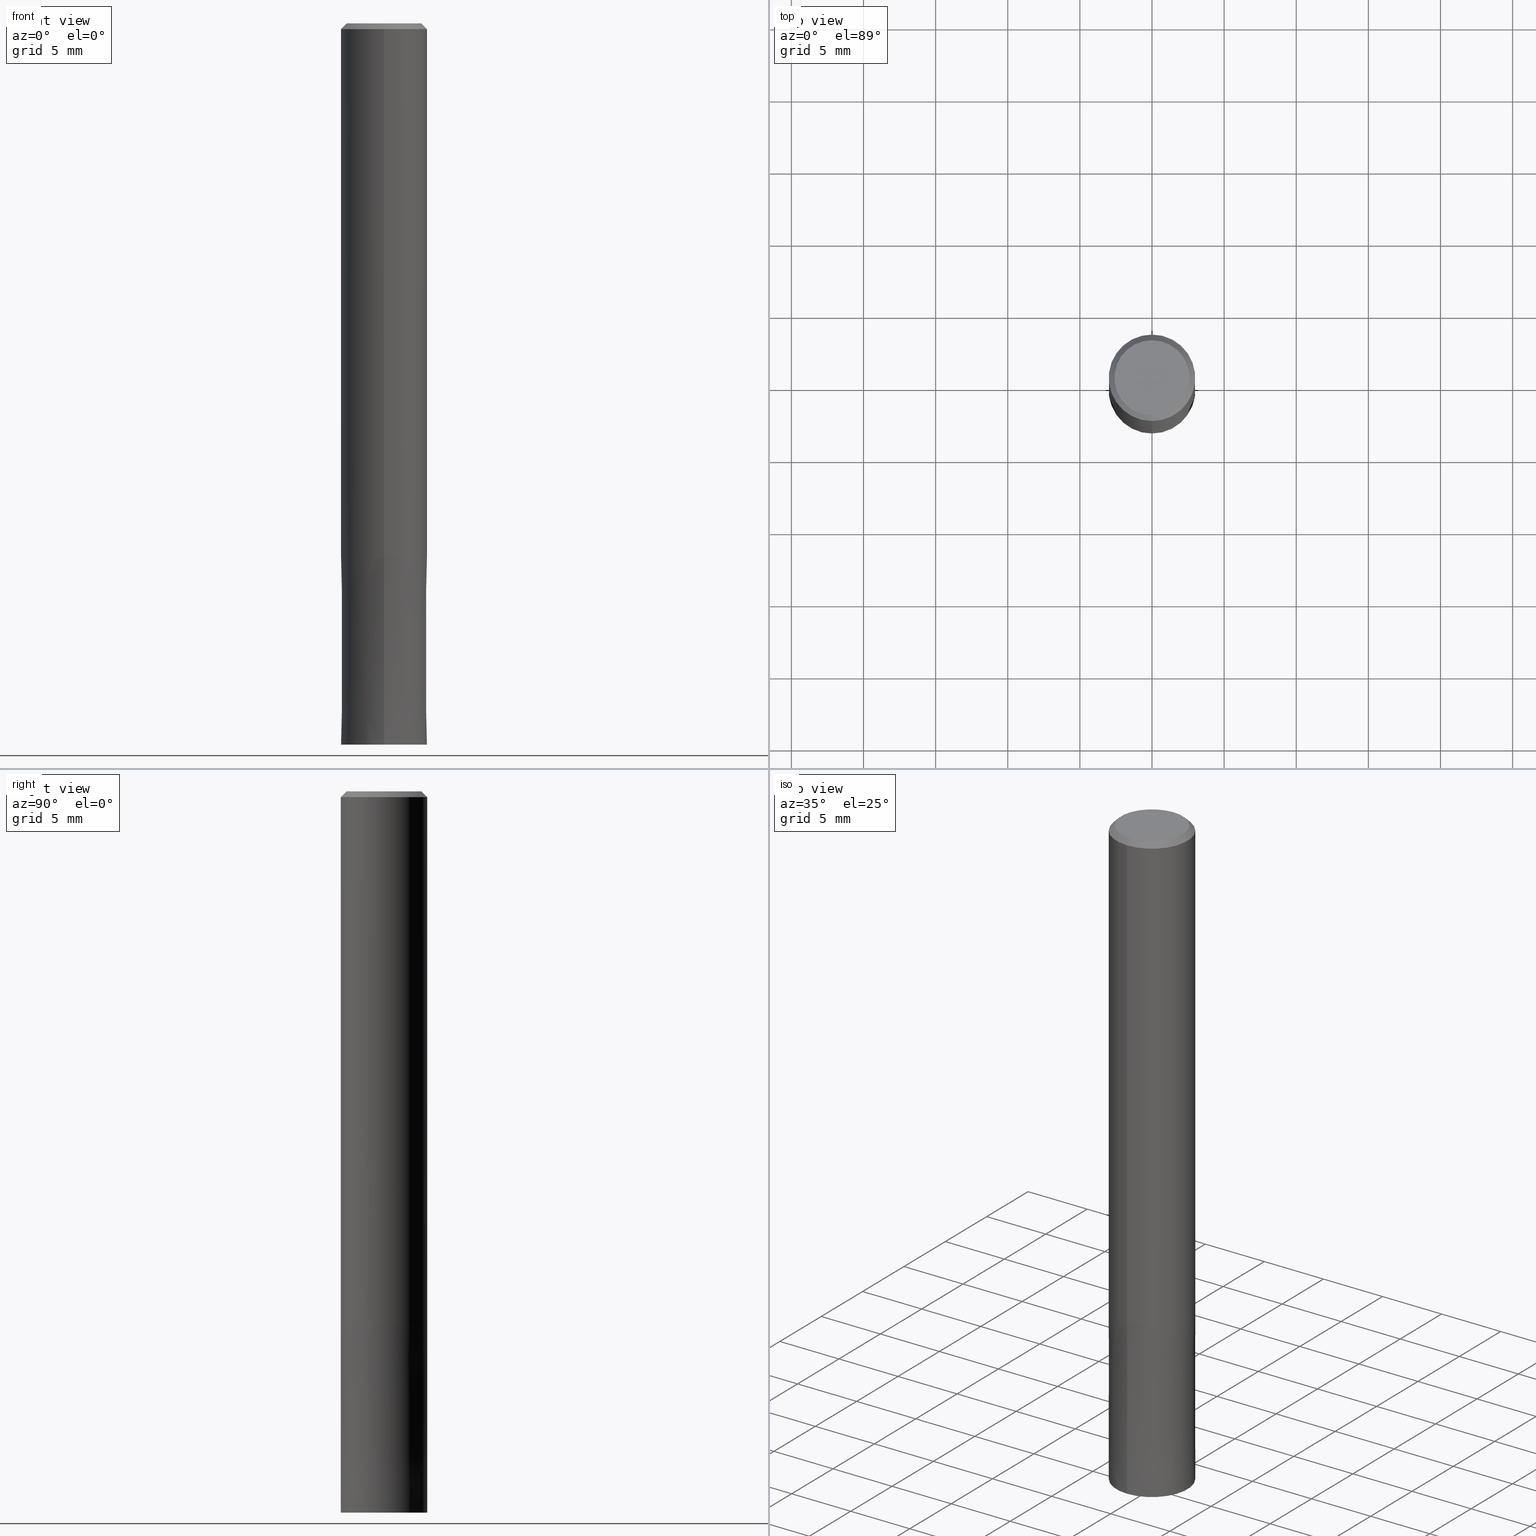
[diagram: canonical four-view strip — front | top / right | iso, engineering-drawing reading convention]
A machine part, canonical four-view strip (front | top / right | iso — engineering-drawing reading convention). The complete STEP part file that produces these views, byte-faithful:
ISO-10303-21;
HEADER;
FILE_DESCRIPTION(('no description'),'unknown implementation level');
FILE_NAME('HMS6060-1300-Huellk.stp','  ',('CIMSOURCE GmbH'),('CADClick - KiM GmbH - www.kimweb.de'),'unknown preprocess','ACIS','unknown authorization');
FILE_SCHEMA(('automotive_design'));
ENDSEC;
DATA;
#1=MECHANICAL_DESIGN_GEOMETRIC_PRESENTATION_REPRESENTATION(' ',(#14,#15,#16,#17,#18,#19,#20,#21,#22,#23,#24,#25,#26,#27,#28,#29,#30,#31,#32,#33,#34,#35,#36,#37,#38,#39,#40,#41,#42,#43,#44,#45,#46,#47,#48,#49,#50,#51,#52,#53,#54,#55,#56,#57,#58,#59,#60,#61,#62,#63,#64,#65,#66,#67,#68,#69,#70,#71,#72,#73,#74,#75,#76),#10);
#2=PRODUCT_DEFINITION_CONTEXT('',#77,'design');
#3=APPLICATION_PROTOCOL_DEFINITION('INTERNATIONAL STANDARD','automotive_design',1994,#77);
#4=PRODUCT_CATEGORY_RELATIONSHIP('NONE','NONE',#78,#79);
#5=SHAPE_DEFINITION_REPRESENTATION(#80,#81);
#6=PRODUCT_DEFINITION_CONTEXT('',#82,'design');
#7=APPLICATION_PROTOCOL_DEFINITION('INTERNATIONAL STANDARD','automotive_design',1994,#82);
#8=PRODUCT_CATEGORY_RELATIONSHIP('NONE','NONE',#83,#84);
#9=SHAPE_DEFINITION_REPRESENTATION(#85,#86);
#10= (GEOMETRIC_REPRESENTATION_CONTEXT(3)GLOBAL_UNCERTAINTY_ASSIGNED_CONTEXT((#89))GLOBAL_UNIT_ASSIGNED_CONTEXT((#91,#92,#93))REPRESENTATION_CONTEXT('NONE','WORKSPACE'));
#14=STYLED_ITEM('',(#95),#96);
#15=STYLED_ITEM('',(#97),#98);
#16=STYLED_ITEM('',(#99),#100);
#17=STYLED_ITEM('',(#101),#102);
#18=STYLED_ITEM('',(#103),#104);
#19=STYLED_ITEM('',(#105),#106);
#20=STYLED_ITEM('',(#107),#108);
#21=STYLED_ITEM('',(#109),#110);
#22=STYLED_ITEM('',(#111),#112);
#23=STYLED_ITEM('',(#113),#114);
#24=STYLED_ITEM('',(#115),#116);
#25=STYLED_ITEM('',(#117),#118);
#26=STYLED_ITEM('',(#119),#120);
#27=STYLED_ITEM('',(#121),#122);
#28=STYLED_ITEM('',(#123),#124);
#29=STYLED_ITEM('',(#125),#126);
#30=STYLED_ITEM('',(#127),#128);
#31=STYLED_ITEM('',(#129),#130);
#32=STYLED_ITEM('',(#131),#132);
#33=STYLED_ITEM('',(#133),#134);
#34=STYLED_ITEM('',(#135),#136);
#35=STYLED_ITEM('',(#137),#138);
#36=STYLED_ITEM('',(#139),#140);
#37=STYLED_ITEM('',(#141),#142);
#38=STYLED_ITEM('',(#143),#144);
#39=STYLED_ITEM('',(#145),#146);
#40=STYLED_ITEM('',(#147),#148);
#41=STYLED_ITEM('',(#149),#150);
#42=STYLED_ITEM('',(#151),#152);
#43=STYLED_ITEM('',(#153),#154);
#44=STYLED_ITEM('',(#155),#156);
#45=STYLED_ITEM('',(#157),#158);
#46=STYLED_ITEM('',(#159),#160);
#47=STYLED_ITEM('',(#161),#162);
#48=STYLED_ITEM('',(#163),#164);
#49=STYLED_ITEM('',(#165),#166);
#50=STYLED_ITEM('',(#167),#168);
#51=STYLED_ITEM('',(#169),#170);
#52=STYLED_ITEM('',(#171),#172);
#53=STYLED_ITEM('',(#173),#174);
#54=STYLED_ITEM('',(#175),#176);
#55=STYLED_ITEM('',(#177),#178);
#56=STYLED_ITEM('',(#179),#180);
#57=STYLED_ITEM('',(#181),#182);
#58=STYLED_ITEM('',(#183),#184);
#59=STYLED_ITEM('',(#185),#186);
#60=STYLED_ITEM('',(#187),#188);
#61=STYLED_ITEM('',(#189),#190);
#62=STYLED_ITEM('',(#191),#192);
#63=STYLED_ITEM('',(#193),#194);
#64=STYLED_ITEM('',(#195),#196);
#65=STYLED_ITEM('',(#197),#198);
#66=STYLED_ITEM('',(#199),#200);
#67=STYLED_ITEM('',(#201),#202);
#68=STYLED_ITEM('',(#203),#204);
#69=STYLED_ITEM('',(#205),#206);
#70=STYLED_ITEM('',(#207),#208);
#71=STYLED_ITEM('',(#209),#210);
#72=STYLED_ITEM('',(#211),#212);
#73=STYLED_ITEM('',(#213),#214);
#74=STYLED_ITEM('',(#215),#216);
#75=STYLED_ITEM('',(#217),#218);
#76=STYLED_ITEM('',(#219),#220);
#77=APPLICATION_CONTEXT(' ');
#78=PRODUCT_CATEGORY('part','NONE');
#79=PRODUCT_RELATED_PRODUCT_CATEGORY('detail',' ',(#221));
#80=PRODUCT_DEFINITION_SHAPE('NONE','NONE',#222);
#81=ADVANCED_BREP_SHAPE_REPRESENTATION('1',(#196,#223),#10);
#82=APPLICATION_CONTEXT(' ');
#83=PRODUCT_CATEGORY('part','NONE');
#84=PRODUCT_RELATED_PRODUCT_CATEGORY('detail',' ',(#224));
#85=PRODUCT_DEFINITION_SHAPE('NONE','NONE',#225);
#86=ADVANCED_BREP_SHAPE_REPRESENTATION('2',(#160,#226),#10);
#89=UNCERTAINTY_MEASURE_WITH_UNIT(LENGTH_MEASURE(1.0E-006),#91,'','');
#91= (CONVERSION_BASED_UNIT('MILLIMETRE',#229)LENGTH_UNIT()NAMED_UNIT(#232));
#92= (NAMED_UNIT(#234)PLANE_ANGLE_UNIT()SI_UNIT($,.RADIAN.));
#93= (NAMED_UNIT(#234)SOLID_ANGLE_UNIT()SI_UNIT($,.STERADIAN.));
#95=PRESENTATION_STYLE_ASSIGNMENT((#240));
#96=VERTEX_POINT('',#241);
#97=PRESENTATION_STYLE_ASSIGNMENT((#242));
#98=EDGE_CURVE('',#114,#130,#243,.T.);
#99=PRESENTATION_STYLE_ASSIGNMENT((#244));
#100=VERTEX_POINT('',#245);
#101=PRESENTATION_STYLE_ASSIGNMENT((#246));
#102=VERTEX_POINT('',#247);
#103=PRESENTATION_STYLE_ASSIGNMENT((#248));
#104=ADVANCED_FACE('',(#249,#250),#251,.T.);
#105=PRESENTATION_STYLE_ASSIGNMENT((#252));
#106=ADVANCED_FACE('',(#253),#254,.T.);
#107=PRESENTATION_STYLE_ASSIGNMENT((#255));
#108=VERTEX_POINT('',#256);
#109=PRESENTATION_STYLE_ASSIGNMENT((#257));
#110=EDGE_CURVE('',#120,#102,#258,.T.);
#111=PRESENTATION_STYLE_ASSIGNMENT((#259));
#112=ADVANCED_FACE('',(#260),#261,.T.);
#113=PRESENTATION_STYLE_ASSIGNMENT((#262));
#114=VERTEX_POINT('',#263);
#115=PRESENTATION_STYLE_ASSIGNMENT((#264));
#116=EDGE_CURVE('',#194,#182,#265,.T.);
#117=PRESENTATION_STYLE_ASSIGNMENT((#266));
#118=EDGE_CURVE('',#172,#168,#267,.T.);
#119=PRESENTATION_STYLE_ASSIGNMENT((#268));
#120=VERTEX_POINT('',#269);
#121=PRESENTATION_STYLE_ASSIGNMENT((#270));
#122=EDGE_CURVE('',#130,#96,#271,.T.);
#123=PRESENTATION_STYLE_ASSIGNMENT((#272));
#124=VERTEX_POINT('',#273);
#125=PRESENTATION_STYLE_ASSIGNMENT((#274));
#126=EDGE_CURVE('',#140,#182,#275,.T.);
#127=PRESENTATION_STYLE_ASSIGNMENT((#276));
#128=EDGE_CURVE('',#216,#108,#277,.T.);
#129=PRESENTATION_STYLE_ASSIGNMENT((#278));
#130=VERTEX_POINT('',#279);
#131=PRESENTATION_STYLE_ASSIGNMENT((#280));
#132=EDGE_CURVE('',#152,#172,#281,.T.);
#133=PRESENTATION_STYLE_ASSIGNMENT((#282));
#134=VERTEX_POINT('',#283);
#135=PRESENTATION_STYLE_ASSIGNMENT((#284));
#136=EDGE_CURVE('',#96,#134,#285,.T.);
#137=PRESENTATION_STYLE_ASSIGNMENT((#286));
#138=ADVANCED_FACE('',(#287,#288),#289,.T.);
#139=PRESENTATION_STYLE_ASSIGNMENT((#290));
#140=VERTEX_POINT('',#291);
#141=PRESENTATION_STYLE_ASSIGNMENT((#292));
#142=VERTEX_POINT('',#293);
#143=PRESENTATION_STYLE_ASSIGNMENT((#294));
#144=EDGE_CURVE('',#168,#172,#295,.T.);
#145=PRESENTATION_STYLE_ASSIGNMENT((#296));
#146=EDGE_CURVE('',#142,#176,#297,.T.);
#147=PRESENTATION_STYLE_ASSIGNMENT((#298));
#148=EDGE_CURVE('',#176,#142,#299,.T.);
#149=PRESENTATION_STYLE_ASSIGNMENT((#300));
#150=ADVANCED_FACE('',(#301),#302,.T.);
#151=PRESENTATION_STYLE_ASSIGNMENT((#303));
#152=VERTEX_POINT('',#304);
#153=PRESENTATION_STYLE_ASSIGNMENT((#305));
#154=EDGE_CURVE('',#216,#176,#306,.T.);
#155=PRESENTATION_STYLE_ASSIGNMENT((#307));
#156=EDGE_CURVE('',#108,#216,#308,.T.);
#157=PRESENTATION_STYLE_ASSIGNMENT((#309));
#158=ADVANCED_FACE('',(#310),#311,.F.);
#159=PRESENTATION_STYLE_ASSIGNMENT((#312));
#160=MANIFOLD_SOLID_BREP('2',#313);
#161=PRESENTATION_STYLE_ASSIGNMENT((#314));
#162=EDGE_CURVE('',#140,#124,#315,.T.);
#163=PRESENTATION_STYLE_ASSIGNMENT((#316));
#164=EDGE_CURVE('',#130,#114,#317,.T.);
#165=PRESENTATION_STYLE_ASSIGNMENT((#318));
#166=ADVANCED_FACE('',(#319),#320,.T.);
#167=PRESENTATION_STYLE_ASSIGNMENT((#321));
#168=VERTEX_POINT('',#322);
#169=PRESENTATION_STYLE_ASSIGNMENT((#323));
#170=ADVANCED_FACE('',(#324),#325,.T.);
#171=PRESENTATION_STYLE_ASSIGNMENT((#326));
#172=VERTEX_POINT('',#327);
#173=PRESENTATION_STYLE_ASSIGNMENT((#328));
#174=EDGE_CURVE('',#102,#114,#329,.T.);
#175=PRESENTATION_STYLE_ASSIGNMENT((#330));
#176=VERTEX_POINT('',#331);
#177=PRESENTATION_STYLE_ASSIGNMENT((#332));
#178=EDGE_CURVE('',#182,#194,#333,.T.);
#179=PRESENTATION_STYLE_ASSIGNMENT((#334));
#180=ADVANCED_FACE('',(#335),#336,.T.);
#181=PRESENTATION_STYLE_ASSIGNMENT((#337));
#182=VERTEX_POINT('',#338);
#183=PRESENTATION_STYLE_ASSIGNMENT((#339));
#184=ADVANCED_FACE('',(#340,#341),#342,.T.);
#185=PRESENTATION_STYLE_ASSIGNMENT((#343));
#186=EDGE_CURVE('',#120,#134,#344,.T.);
#187=PRESENTATION_STYLE_ASSIGNMENT((#345));
#188=EDGE_CURVE('',#134,#120,#346,.T.);
#189=PRESENTATION_STYLE_ASSIGNMENT((#347));
#190=EDGE_CURVE('',#194,#124,#348,.T.);
#191=PRESENTATION_STYLE_ASSIGNMENT((#349));
#192=ADVANCED_FACE('',(#350),#351,.F.);
#193=PRESENTATION_STYLE_ASSIGNMENT((#352));
#194=VERTEX_POINT('',#353);
#195=PRESENTATION_STYLE_ASSIGNMENT((#354));
#196=MANIFOLD_SOLID_BREP('1',#355);
#197=PRESENTATION_STYLE_ASSIGNMENT((#356));
#198=EDGE_CURVE('',#142,#108,#357,.T.);
#199=PRESENTATION_STYLE_ASSIGNMENT((#358));
#200=EDGE_CURVE('',#100,#152,#359,.T.);
#201=PRESENTATION_STYLE_ASSIGNMENT((#360));
#202=EDGE_CURVE('',#152,#100,#361,.T.);
#203=PRESENTATION_STYLE_ASSIGNMENT((#362));
#204=ADVANCED_FACE('',(#363),#364,.T.);
#205=PRESENTATION_STYLE_ASSIGNMENT((#365));
#206=EDGE_CURVE('',#168,#100,#366,.T.);
#207=PRESENTATION_STYLE_ASSIGNMENT((#367));
#208=ADVANCED_FACE('',(#368),#369,.T.);
#209=PRESENTATION_STYLE_ASSIGNMENT((#370));
#210=EDGE_CURVE('',#96,#102,#371,.T.);
#211=PRESENTATION_STYLE_ASSIGNMENT((#372));
#212=ADVANCED_FACE('',(#373),#374,.T.);
#213=PRESENTATION_STYLE_ASSIGNMENT((#375));
#214=EDGE_CURVE('',#102,#96,#376,.T.);
#215=PRESENTATION_STYLE_ASSIGNMENT((#377));
#216=VERTEX_POINT('',#378);
#217=PRESENTATION_STYLE_ASSIGNMENT((#379));
#218=ADVANCED_FACE('',(#380),#381,.T.);
#219=PRESENTATION_STYLE_ASSIGNMENT((#382));
#220=EDGE_CURVE('',#124,#140,#383,.T.);
#221=PRODUCT('1','1','PART-1-DESC',(#384));
#222=PRODUCT_DEFINITION('NONE','NONE',#385,#2);
#223=AXIS2_PLACEMENT_3D('',#386,#387,#388);
#224=PRODUCT('2','2','PART-2-DESC',(#389));
#225=PRODUCT_DEFINITION('NONE','NONE',#390,#6);
#226=AXIS2_PLACEMENT_3D('',#391,#392,#393);
#229=LENGTH_MEASURE_WITH_UNIT(LENGTH_MEASURE(1.0),#394);
#232=DIMENSIONAL_EXPONENTS(1.0,0.0,0.0,0.0,0.0,0.0,0.0);
#234=DIMENSIONAL_EXPONENTS(0.0,0.0,0.0,0.0,0.0,0.0,0.0);
#240=POINT_STYLE(' ',#395,POSITIVE_LENGTH_MEASURE(1.0E-006),#396);
#241=CARTESIAN_POINT('',(0.0,3.0,-0.399999999999999));
#242=CURVE_STYLE('',#397,POSITIVE_LENGTH_MEASURE(1.0E-006),#398);
#243=CIRCLE('',#399,2.6);
#244=POINT_STYLE(' ',#400,POSITIVE_LENGTH_MEASURE(1.0E-006),#401);
#245=CARTESIAN_POINT('',(0.0,1.35,-49.9));
#246=POINT_STYLE(' ',#402,POSITIVE_LENGTH_MEASURE(1.0E-006),#403);
#247=CARTESIAN_POINT('',(3.67381906146713E-016,-3.0,-0.399999999999999));
#248=SURFACE_STYLE_USAGE(.BOTH.,#404);
#249=FACE_OUTER_BOUND('',#405,.T.);
#250=FACE_BOUND('',#406,.T.);
#251=PLANE('',#407);
#252=SURFACE_STYLE_USAGE(.BOTH.,#408);
#253=FACE_OUTER_BOUND('',#409,.T.);
#254=CONICAL_SURFACE('',#410,2.99995,7.6923076921722E-006);
#255=POINT_STYLE(' ',#411,POSITIVE_LENGTH_MEASURE(1.0E-006),#412);
#256=CARTESIAN_POINT('',(1.65321857766021E-016,-1.35,-37.0));
#257=CURVE_STYLE('',#413,POSITIVE_LENGTH_MEASURE(1.0E-006),#414);
#258=LINE('',#415,#416);
#259=SURFACE_STYLE_USAGE(.BOTH.,#417);
#260=FACE_OUTER_BOUND('',#418,.T.);
#261=CYLINDRICAL_SURFACE('',#419,1.35);
#262=POINT_STYLE(' ',#420,POSITIVE_LENGTH_MEASURE(1.0E-006),#421);
#263=CARTESIAN_POINT('',(3.18397651993818E-016,-2.6,0.0));
#264=CURVE_STYLE('',#422,POSITIVE_LENGTH_MEASURE(1.0E-006),#423);
#265=CIRCLE('',#424,2.9999);
#266=CURVE_STYLE('',#425,POSITIVE_LENGTH_MEASURE(1.0E-006),#426);
#267=CIRCLE('',#427,1.35);
#268=POINT_STYLE(' ',#428,POSITIVE_LENGTH_MEASURE(1.0E-006),#429);
#269=CARTESIAN_POINT('',(3.67381906146713E-016,-3.0,-37.0));
#270=CURVE_STYLE('',#430,POSITIVE_LENGTH_MEASURE(1.0E-006),#431);
#271=LINE('',#432,#433);
#272=POINT_STYLE(' ',#434,POSITIVE_LENGTH_MEASURE(1.0E-006),#435);
#273=CARTESIAN_POINT('',(0.0,3.0,-50.0));
#274=CURVE_STYLE('',#436,POSITIVE_LENGTH_MEASURE(1.0E-006),#437);
#275=LINE('',#438,#439);
#276=CURVE_STYLE('',#440,POSITIVE_LENGTH_MEASURE(1.0E-006),#441);
#277=CIRCLE('',#442,1.35);
#278=POINT_STYLE(' ',#443,POSITIVE_LENGTH_MEASURE(1.0E-006),#444);
#279=CARTESIAN_POINT('',(0.0,2.6,0.0));
#280=CURVE_STYLE('',#445,POSITIVE_LENGTH_MEASURE(1.0E-006),#446);
#281=LINE('',#447,#448);
#282=POINT_STYLE(' ',#449,POSITIVE_LENGTH_MEASURE(1.0E-006),#450);
#283=CARTESIAN_POINT('',(0.0,3.0,-37.0));
#284=CURVE_STYLE('',#451,POSITIVE_LENGTH_MEASURE(1.0E-006),#452);
#285=LINE('',#453,#454);
#286=SURFACE_STYLE_USAGE(.BOTH.,#455);
#287=FACE_OUTER_BOUND('',#456,.T.);
#288=FACE_BOUND('',#457,.T.);
#289=PLANE('',#458);
#290=POINT_STYLE(' ',#459,POSITIVE_LENGTH_MEASURE(1.0E-006),#460);
#291=CARTESIAN_POINT('',(3.67381906146713E-016,-3.0,-50.0));
#292=POINT_STYLE(' ',#461,POSITIVE_LENGTH_MEASURE(1.0E-006),#462);
#293=CARTESIAN_POINT('',(1.65321857766021E-016,-1.35,-50.0));
#294=CURVE_STYLE('',#463,POSITIVE_LENGTH_MEASURE(1.0E-006),#464);
#295=CIRCLE('',#465,1.35);
#296=CURVE_STYLE('',#466,POSITIVE_LENGTH_MEASURE(1.0E-006),#467);
#297=CIRCLE('',#468,1.35);
#298=CURVE_STYLE('',#469,POSITIVE_LENGTH_MEASURE(1.0E-006),#470);
#299=CIRCLE('',#471,1.35);
#300=SURFACE_STYLE_USAGE(.BOTH.,#472);
#301=FACE_OUTER_BOUND('',#473,.T.);
#302=CYLINDRICAL_SURFACE('',#474,3.0);
#303=POINT_STYLE(' ',#475,POSITIVE_LENGTH_MEASURE(1.0E-006),#476);
#304=CARTESIAN_POINT('',(1.65321857766021E-016,-1.35,-49.9));
#305=CURVE_STYLE('',#477,POSITIVE_LENGTH_MEASURE(1.0E-006),#478);
#306=LINE('',#479,#480);
#307=CURVE_STYLE('',#481,POSITIVE_LENGTH_MEASURE(1.0E-006),#482);
#308=CIRCLE('',#483,1.35);
#309=SURFACE_STYLE_USAGE(.BOTH.,#484);
#310=FACE_OUTER_BOUND('',#485,.T.);
#311=CYLINDRICAL_SURFACE('',#486,1.35);
#312=SURFACE_STYLE_USAGE(.BOTH.,#487);
#313=CLOSED_SHELL('',(#192,#106,#104,#208,#184,#158));
#314=CURVE_STYLE('',#488,POSITIVE_LENGTH_MEASURE(1.0E-006),#489);
#315=CIRCLE('',#490,3.0);
#316=CURVE_STYLE('',#491,POSITIVE_LENGTH_MEASURE(1.0E-006),#492);
#317=CIRCLE('',#493,2.6);
#318=SURFACE_STYLE_USAGE(.BOTH.,#494);
#319=FACE_OUTER_BOUND('',#495,.T.);
#320=CONICAL_SURFACE('',#496,2.8,0.78539816339745);
#321=POINT_STYLE(' ',#497,POSITIVE_LENGTH_MEASURE(1.0E-006),#498);
#322=CARTESIAN_POINT('',(0.0,1.35,-37.0));
#323=SURFACE_STYLE_USAGE(.BOTH.,#499);
#324=FACE_OUTER_BOUND('',#500,.T.);
#325=PLANE('',#501);
#326=POINT_STYLE(' ',#502,POSITIVE_LENGTH_MEASURE(1.0E-006),#503);
#327=CARTESIAN_POINT('',(1.65321857766021E-016,-1.35,-37.0));
#328=CURVE_STYLE('',#504,POSITIVE_LENGTH_MEASURE(1.0E-006),#505);
#329=LINE('',#506,#507);
#330=POINT_STYLE(' ',#508,POSITIVE_LENGTH_MEASURE(1.0E-006),#509);
#331=CARTESIAN_POINT('',(0.0,1.35,-50.0));
#332=CURVE_STYLE('',#510,POSITIVE_LENGTH_MEASURE(1.0E-006),#511);
#333=CIRCLE('',#512,2.9999);
#334=SURFACE_STYLE_USAGE(.BOTH.,#513);
#335=FACE_OUTER_BOUND('',#514,.T.);
#336=CYLINDRICAL_SURFACE('',#515,1.35);
#337=POINT_STYLE(' ',#516,POSITIVE_LENGTH_MEASURE(1.0E-006),#517);
#338=CARTESIAN_POINT('',(3.67369660083175E-016,-2.9999,-37.0));
#339=SURFACE_STYLE_USAGE(.BOTH.,#518);
#340=FACE_OUTER_BOUND('',#519,.T.);
#341=FACE_BOUND('',#520,.T.);
#342=PLANE('',#521);
#343=CURVE_STYLE('',#522,POSITIVE_LENGTH_MEASURE(1.0E-006),#523);
#344=CIRCLE('',#524,3.0);
#345=CURVE_STYLE('',#525,POSITIVE_LENGTH_MEASURE(1.0E-006),#526);
#346=CIRCLE('',#527,3.0);
#347=CURVE_STYLE('',#528,POSITIVE_LENGTH_MEASURE(1.0E-006),#529);
#348=LINE('',#530,#531);
#349=SURFACE_STYLE_USAGE(.BOTH.,#532);
#350=FACE_OUTER_BOUND('',#533,.T.);
#351=CYLINDRICAL_SURFACE('',#534,1.35);
#352=POINT_STYLE(' ',#535,POSITIVE_LENGTH_MEASURE(1.0E-006),#536);
#353=CARTESIAN_POINT('',(0.0,2.9999,-37.0));
#354=SURFACE_STYLE_USAGE(.BOTH.,#537);
#355=CLOSED_SHELL('',(#112,#218,#166,#138,#204,#212,#150,#180,#170));
#356=CURVE_STYLE('',#538,POSITIVE_LENGTH_MEASURE(1.0E-006),#539);
#357=LINE('',#540,#541);
#358=CURVE_STYLE('',#542,POSITIVE_LENGTH_MEASURE(1.0E-006),#543);
#359=CIRCLE('',#544,1.35);
#360=CURVE_STYLE('',#545,POSITIVE_LENGTH_MEASURE(1.0E-006),#546);
#361=CIRCLE('',#547,1.35);
#362=SURFACE_STYLE_USAGE(.BOTH.,#548);
#363=FACE_OUTER_BOUND('',#549,.T.);
#364=PLANE('',#550);
#365=CURVE_STYLE('',#551,POSITIVE_LENGTH_MEASURE(1.0E-006),#552);
#366=LINE('',#553,#554);
#367=SURFACE_STYLE_USAGE(.BOTH.,#555);
#368=FACE_OUTER_BOUND('',#556,.T.);
#369=CONICAL_SURFACE('',#557,2.99995,7.6923076921722E-006);
#370=CURVE_STYLE('',#558,POSITIVE_LENGTH_MEASURE(1.0E-006),#559);
#371=CIRCLE('',#560,3.0);
#372=SURFACE_STYLE_USAGE(.BOTH.,#561);
#373=FACE_OUTER_BOUND('',#562,.T.);
#374=CONICAL_SURFACE('',#563,2.8,0.78539816339745);
#375=CURVE_STYLE('',#564,POSITIVE_LENGTH_MEASURE(1.0E-006),#565);
#376=CIRCLE('',#566,3.0);
#377=POINT_STYLE(' ',#567,POSITIVE_LENGTH_MEASURE(1.0E-006),#568);
#378=CARTESIAN_POINT('',(0.0,1.35,-37.0));
#379=SURFACE_STYLE_USAGE(.BOTH.,#569);
#380=FACE_OUTER_BOUND('',#570,.T.);
#381=CYLINDRICAL_SURFACE('',#571,3.0);
#382=CURVE_STYLE('',#572,POSITIVE_LENGTH_MEASURE(1.0E-006),#573);
#383=CIRCLE('',#574,3.0);
#384=PRODUCT_CONTEXT('',#77,'mechanical');
#385=PRODUCT_DEFINITION_FORMATION_WITH_SPECIFIED_SOURCE(' ','NONE',#221,.NOT_KNOWN.);
#386=CARTESIAN_POINT('',(0.0,0.0,0.0));
#387=DIRECTION('',(0.0,0.0,1.0));
#388=DIRECTION('',(1.0,0.0,0.0));
#389=PRODUCT_CONTEXT('',#82,'mechanical');
#390=PRODUCT_DEFINITION_FORMATION_WITH_SPECIFIED_SOURCE(' ','NONE',#224,.NOT_KNOWN.);
#391=CARTESIAN_POINT('',(0.0,0.0,0.0));
#392=DIRECTION('',(0.0,0.0,1.0));
#393=DIRECTION('',(1.0,0.0,0.0));
#394= (NAMED_UNIT(#232)LENGTH_UNIT()SI_UNIT(.MILLI.,.METRE.));
#395=PRE_DEFINED_MARKER('');
#396=COLOUR_RGB('',0.498039215803146,0.498039215803146,0.498039215803146);
#397=DRAUGHTING_PRE_DEFINED_CURVE_FONT('continuous');
#398=COLOUR_RGB('',0.498039215803146,0.498039215803146,0.498039215803146);
#399=AXIS2_PLACEMENT_3D('',#576,#577,#578);
#400=PRE_DEFINED_MARKER('');
#401=COLOUR_RGB('',0.498039215803146,0.498039215803146,0.498039215803146);
#402=PRE_DEFINED_MARKER('');
#403=COLOUR_RGB('',0.498039215803146,0.498039215803146,0.498039215803146);
#404=SURFACE_SIDE_STYLE('',(#579));
#405=EDGE_LOOP('',(#580,#581));
#406=EDGE_LOOP('',(#582,#583));
#407=AXIS2_PLACEMENT_3D('',#584,#585,#586);
#408=SURFACE_SIDE_STYLE('',(#587));
#409=EDGE_LOOP('',(#588,#589,#590,#591));
#410=AXIS2_PLACEMENT_3D('',#592,#593,#594);
#411=PRE_DEFINED_MARKER('');
#412=COLOUR_RGB('',0.800000011920929,0.800000011920929,0.800000011920929);
#413=DRAUGHTING_PRE_DEFINED_CURVE_FONT('continuous');
#414=COLOUR_RGB('',0.498039215803146,0.498039215803146,0.498039215803146);
#415=CARTESIAN_POINT('',(3.67381906146713E-016,-3.0,-18.7));
#416=VECTOR('',#595,1.0);
#417=SURFACE_SIDE_STYLE('',(#596));
#418=EDGE_LOOP('',(#597,#598,#599,#600));
#419=AXIS2_PLACEMENT_3D('',#601,#602,#603);
#420=PRE_DEFINED_MARKER('');
#421=COLOUR_RGB('',0.498039215803146,0.498039215803146,0.498039215803146);
#422=DRAUGHTING_PRE_DEFINED_CURVE_FONT('continuous');
#423=COLOUR_RGB('',0.800000011920929,0.800000011920929,0.800000011920929);
#424=AXIS2_PLACEMENT_3D('',#604,#605,#606);
#425=DRAUGHTING_PRE_DEFINED_CURVE_FONT('continuous');
#426=COLOUR_RGB('',0.498039215803146,0.498039215803146,0.498039215803146);
#427=AXIS2_PLACEMENT_3D('',#607,#608,#609);
#428=PRE_DEFINED_MARKER('');
#429=COLOUR_RGB('',0.498039215803146,0.498039215803146,0.498039215803146);
#430=DRAUGHTING_PRE_DEFINED_CURVE_FONT('continuous');
#431=COLOUR_RGB('',0.498039215803146,0.498039215803146,0.498039215803146);
#432=CARTESIAN_POINT('',(-3.42889779070266E-016,2.8,-0.200000000000003));
#433=VECTOR('',#610,1.0);
#434=PRE_DEFINED_MARKER('');
#435=COLOUR_RGB('',0.800000011920929,0.800000011920929,0.800000011920929);
#436=DRAUGHTING_PRE_DEFINED_CURVE_FONT('continuous');
#437=COLOUR_RGB('',0.800000011920929,0.800000011920929,0.800000011920929);
#438=CARTESIAN_POINT('',(3.67375783114944E-016,-2.99995,-43.5));
#439=VECTOR('',#611,1.0);
#440=DRAUGHTING_PRE_DEFINED_CURVE_FONT('continuous');
#441=COLOUR_RGB('',0.800000011920929,0.800000011920929,0.800000011920929);
#442=AXIS2_PLACEMENT_3D('',#612,#613,#614);
#443=PRE_DEFINED_MARKER('');
#444=COLOUR_RGB('',0.498039215803146,0.498039215803146,0.498039215803146);
#445=DRAUGHTING_PRE_DEFINED_CURVE_FONT('continuous');
#446=COLOUR_RGB('',0.498039215803146,0.498039215803146,0.498039215803146);
#447=CARTESIAN_POINT('',(1.65321857766021E-016,-1.35,-43.45));
#448=VECTOR('',#615,1.0);
#449=PRE_DEFINED_MARKER('');
#450=COLOUR_RGB('',0.498039215803146,0.498039215803146,0.498039215803146);
#451=DRAUGHTING_PRE_DEFINED_CURVE_FONT('continuous');
#452=COLOUR_RGB('',0.498039215803146,0.498039215803146,0.498039215803146);
#453=CARTESIAN_POINT('',(-3.67381906146713E-016,3.0,-18.7));
#454=VECTOR('',#616,1.0);
#455=SURFACE_SIDE_STYLE('',(#617));
#456=EDGE_LOOP('',(#618,#619));
#457=EDGE_LOOP('',(#620,#621));
#458=AXIS2_PLACEMENT_3D('',#622,#623,#624);
#459=PRE_DEFINED_MARKER('');
#460=COLOUR_RGB('',0.800000011920929,0.800000011920929,0.800000011920929);
#461=PRE_DEFINED_MARKER('');
#462=COLOUR_RGB('',0.800000011920929,0.800000011920929,0.800000011920929);
#463=DRAUGHTING_PRE_DEFINED_CURVE_FONT('continuous');
#464=COLOUR_RGB('',0.498039215803146,0.498039215803146,0.498039215803146);
#465=AXIS2_PLACEMENT_3D('',#625,#626,#627);
#466=DRAUGHTING_PRE_DEFINED_CURVE_FONT('continuous');
#467=COLOUR_RGB('',0.800000011920929,0.800000011920929,0.800000011920929);
#468=AXIS2_PLACEMENT_3D('',#628,#629,#630);
#469=DRAUGHTING_PRE_DEFINED_CURVE_FONT('continuous');
#470=COLOUR_RGB('',0.800000011920929,0.800000011920929,0.800000011920929);
#471=AXIS2_PLACEMENT_3D('',#631,#632,#633);
#472=SURFACE_SIDE_STYLE('',(#634));
#473=EDGE_LOOP('',(#635,#636,#637,#638));
#474=AXIS2_PLACEMENT_3D('',#639,#640,#641);
#475=PRE_DEFINED_MARKER('');
#476=COLOUR_RGB('',0.498039215803146,0.498039215803146,0.498039215803146);
#477=DRAUGHTING_PRE_DEFINED_CURVE_FONT('continuous');
#478=COLOUR_RGB('',0.800000011920929,0.800000011920929,0.800000011920929);
#479=CARTESIAN_POINT('',(-1.65321857766021E-016,1.35,-43.5));
#480=VECTOR('',#642,1.0);
#481=DRAUGHTING_PRE_DEFINED_CURVE_FONT('continuous');
#482=COLOUR_RGB('',0.800000011920929,0.800000011920929,0.800000011920929);
#483=AXIS2_PLACEMENT_3D('',#643,#644,#645);
#484=SURFACE_SIDE_STYLE('',(#646));
#485=EDGE_LOOP('',(#647,#648,#649,#650));
#486=AXIS2_PLACEMENT_3D('',#651,#652,#653);
#487=SURFACE_SIDE_STYLE('',(#654));
#488=DRAUGHTING_PRE_DEFINED_CURVE_FONT('continuous');
#489=COLOUR_RGB('',0.800000011920929,0.800000011920929,0.800000011920929);
#490=AXIS2_PLACEMENT_3D('',#655,#656,#657);
#491=DRAUGHTING_PRE_DEFINED_CURVE_FONT('continuous');
#492=COLOUR_RGB('',0.498039215803146,0.498039215803146,0.498039215803146);
#493=AXIS2_PLACEMENT_3D('',#658,#659,#660);
#494=SURFACE_SIDE_STYLE('',(#661));
#495=EDGE_LOOP('',(#662,#663,#664,#665));
#496=AXIS2_PLACEMENT_3D('',#666,#667,#668);
#497=PRE_DEFINED_MARKER('');
#498=COLOUR_RGB('',0.498039215803146,0.498039215803146,0.498039215803146);
#499=SURFACE_SIDE_STYLE('',(#669));
#500=EDGE_LOOP('',(#670,#671));
#501=AXIS2_PLACEMENT_3D('',#672,#673,#674);
#502=PRE_DEFINED_MARKER('');
#503=COLOUR_RGB('',0.498039215803146,0.498039215803146,0.498039215803146);
#504=DRAUGHTING_PRE_DEFINED_CURVE_FONT('continuous');
#505=COLOUR_RGB('',0.498039215803146,0.498039215803146,0.498039215803146);
#506=CARTESIAN_POINT('',(3.42889779070266E-016,-2.8,-0.200000000000003));
#507=VECTOR('',#675,1.0);
#508=PRE_DEFINED_MARKER('');
#509=COLOUR_RGB('',0.800000011920929,0.800000011920929,0.800000011920929);
#510=DRAUGHTING_PRE_DEFINED_CURVE_FONT('continuous');
#511=COLOUR_RGB('',0.800000011920929,0.800000011920929,0.800000011920929);
#512=AXIS2_PLACEMENT_3D('',#676,#677,#678);
#513=SURFACE_SIDE_STYLE('',(#679));
#514=EDGE_LOOP('',(#680,#681,#682,#683));
#515=AXIS2_PLACEMENT_3D('',#684,#685,#686);
#516=PRE_DEFINED_MARKER('');
#517=COLOUR_RGB('',0.800000011920929,0.800000011920929,0.800000011920929);
#518=SURFACE_SIDE_STYLE('',(#687));
#519=EDGE_LOOP('',(#688,#689));
#520=EDGE_LOOP('',(#690,#691));
#521=AXIS2_PLACEMENT_3D('',#692,#693,#694);
#522=DRAUGHTING_PRE_DEFINED_CURVE_FONT('continuous');
#523=COLOUR_RGB('',0.498039215803146,0.498039215803146,0.498039215803146);
#524=AXIS2_PLACEMENT_3D('',#695,#696,#697);
#525=DRAUGHTING_PRE_DEFINED_CURVE_FONT('continuous');
#526=COLOUR_RGB('',0.498039215803146,0.498039215803146,0.498039215803146);
#527=AXIS2_PLACEMENT_3D('',#698,#699,#700);
#528=DRAUGHTING_PRE_DEFINED_CURVE_FONT('continuous');
#529=COLOUR_RGB('',0.800000011920929,0.800000011920929,0.800000011920929);
#530=CARTESIAN_POINT('',(-3.67375783114944E-016,2.99995,-43.5));
#531=VECTOR('',#701,1.0);
#532=SURFACE_SIDE_STYLE('',(#702));
#533=EDGE_LOOP('',(#703,#704,#705,#706));
#534=AXIS2_PLACEMENT_3D('',#707,#708,#709);
#535=PRE_DEFINED_MARKER('');
#536=COLOUR_RGB('',0.800000011920929,0.800000011920929,0.800000011920929);
#537=SURFACE_SIDE_STYLE('',(#710));
#538=DRAUGHTING_PRE_DEFINED_CURVE_FONT('continuous');
#539=COLOUR_RGB('',0.800000011920929,0.800000011920929,0.800000011920929);
#540=CARTESIAN_POINT('',(1.65321857766021E-016,-1.35,-43.5));
#541=VECTOR('',#711,1.0);
#542=DRAUGHTING_PRE_DEFINED_CURVE_FONT('continuous');
#543=COLOUR_RGB('',0.498039215803146,0.498039215803146,0.498039215803146);
#544=AXIS2_PLACEMENT_3D('',#712,#713,#714);
#545=DRAUGHTING_PRE_DEFINED_CURVE_FONT('continuous');
#546=COLOUR_RGB('',0.498039215803146,0.498039215803146,0.498039215803146);
#547=AXIS2_PLACEMENT_3D('',#715,#716,#717);
#548=SURFACE_SIDE_STYLE('',(#718));
#549=EDGE_LOOP('',(#719,#720));
#550=AXIS2_PLACEMENT_3D('',#721,#722,#723);
#551=DRAUGHTING_PRE_DEFINED_CURVE_FONT('continuous');
#552=COLOUR_RGB('',0.498039215803146,0.498039215803146,0.498039215803146);
#553=CARTESIAN_POINT('',(-1.65321857766021E-016,1.35,-43.45));
#554=VECTOR('',#724,1.0);
#555=SURFACE_SIDE_STYLE('',(#725));
#556=EDGE_LOOP('',(#726,#727,#728,#729));
#557=AXIS2_PLACEMENT_3D('',#730,#731,#732);
#558=DRAUGHTING_PRE_DEFINED_CURVE_FONT('continuous');
#559=COLOUR_RGB('',0.498039215803146,0.498039215803146,0.498039215803146);
#560=AXIS2_PLACEMENT_3D('',#733,#734,#735);
#561=SURFACE_SIDE_STYLE('',(#736));
#562=EDGE_LOOP('',(#737,#738,#739,#740));
#563=AXIS2_PLACEMENT_3D('',#741,#742,#743);
#564=DRAUGHTING_PRE_DEFINED_CURVE_FONT('continuous');
#565=COLOUR_RGB('',0.498039215803146,0.498039215803146,0.498039215803146);
#566=AXIS2_PLACEMENT_3D('',#744,#745,#746);
#567=PRE_DEFINED_MARKER('');
#568=COLOUR_RGB('',0.800000011920929,0.800000011920929,0.800000011920929);
#569=SURFACE_SIDE_STYLE('',(#747));
#570=EDGE_LOOP('',(#748,#749,#750,#751));
#571=AXIS2_PLACEMENT_3D('',#752,#753,#754);
#572=DRAUGHTING_PRE_DEFINED_CURVE_FONT('continuous');
#573=COLOUR_RGB('',0.800000011920929,0.800000011920929,0.800000011920929);
#574=AXIS2_PLACEMENT_3D('',#755,#756,#757);
#576=CARTESIAN_POINT('',(0.0,0.0,0.0));
#577=DIRECTION('',(0.0,0.0,-1.0));
#578=DIRECTION('',(0.0,1.0,0.0));
#579=SURFACE_STYLE_FILL_AREA(#758);
#580=ORIENTED_EDGE('',*,*,#116,.F.);
#581=ORIENTED_EDGE('',*,*,#178,.F.);
#582=ORIENTED_EDGE('',*,*,#128,.T.);
#583=ORIENTED_EDGE('',*,*,#156,.T.);
#584=CARTESIAN_POINT('',(0.0,2.17495,-37.0));
#585=DIRECTION('',(-0.0,0.0,1.0));
#586=DIRECTION('',(0.0,-1.0,0.0));
#587=SURFACE_STYLE_FILL_AREA(#759);
#588=ORIENTED_EDGE('',*,*,#190,.F.);
#589=ORIENTED_EDGE('',*,*,#116,.T.);
#590=ORIENTED_EDGE('',*,*,#126,.F.);
#591=ORIENTED_EDGE('',*,*,#220,.F.);
#592=CARTESIAN_POINT('',(0.0,0.0,-43.5));
#593=DIRECTION('',(0.0,-0.0,-1.0));
#594=DIRECTION('',(0.0,1.0,0.0));
#595=DIRECTION('',(-0.0,-0.0,1.0));
#596=SURFACE_STYLE_FILL_AREA(#760);
#597=ORIENTED_EDGE('',*,*,#206,.F.);
#598=ORIENTED_EDGE('',*,*,#144,.T.);
#599=ORIENTED_EDGE('',*,*,#132,.F.);
#600=ORIENTED_EDGE('',*,*,#200,.F.);
#601=CARTESIAN_POINT('',(0.0,0.0,-43.45));
#602=DIRECTION('',(-0.0,-0.0,1.0));
#603=DIRECTION('',(0.0,1.0,0.0));
#604=CARTESIAN_POINT('',(0.0,0.0,-37.0));
#605=DIRECTION('',(0.0,0.0,-1.0));
#606=DIRECTION('',(0.0,1.0,0.0));
#607=CARTESIAN_POINT('',(0.0,0.0,-37.0));
#608=DIRECTION('',(0.0,0.0,-1.0));
#609=DIRECTION('',(0.0,1.0,0.0));
#610=DIRECTION('',(-8.65927457071937E-017,0.707106781186549,-0.707106781186546));
#611=DIRECTION('',(-9.42004887529793E-022,7.69230769209634E-006,0.999999999970414));
#612=CARTESIAN_POINT('',(0.0,0.0,-37.0));
#613=DIRECTION('',(0.0,0.0,-1.0));
#614=DIRECTION('',(0.0,1.0,0.0));
#615=DIRECTION('',(-0.0,-0.0,1.0));
#616=DIRECTION('',(0.0,0.0,-1.0));
#617=SURFACE_STYLE_FILL_AREA(#761);
#618=ORIENTED_EDGE('',*,*,#188,.T.);
#619=ORIENTED_EDGE('',*,*,#186,.T.);
#620=ORIENTED_EDGE('',*,*,#144,.F.);
#621=ORIENTED_EDGE('',*,*,#118,.F.);
#622=CARTESIAN_POINT('',(0.0,1.5,-37.0));
#623=DIRECTION('',(0.0,0.0,-1.0));
#624=DIRECTION('',(0.0,1.0,0.0));
#625=CARTESIAN_POINT('',(0.0,0.0,-37.0));
#626=DIRECTION('',(0.0,0.0,-1.0));
#627=DIRECTION('',(0.0,1.0,0.0));
#628=CARTESIAN_POINT('',(0.0,0.0,-50.0));
#629=DIRECTION('',(0.0,0.0,-1.0));
#630=DIRECTION('',(0.0,1.0,0.0));
#631=CARTESIAN_POINT('',(0.0,0.0,-50.0));
#632=DIRECTION('',(0.0,0.0,-1.0));
#633=DIRECTION('',(0.0,1.0,0.0));
#634=SURFACE_STYLE_FILL_AREA(#762);
#635=ORIENTED_EDGE('',*,*,#136,.T.);
#636=ORIENTED_EDGE('',*,*,#186,.F.);
#637=ORIENTED_EDGE('',*,*,#110,.T.);
#638=ORIENTED_EDGE('',*,*,#214,.T.);
#639=CARTESIAN_POINT('',(0.0,0.0,-18.7));
#640=DIRECTION('',(-0.0,-0.0,1.0));
#641=DIRECTION('',(0.0,1.0,0.0));
#642=DIRECTION('',(0.0,-0.0,-1.0));
#643=CARTESIAN_POINT('',(0.0,0.0,-37.0));
#644=DIRECTION('',(0.0,0.0,-1.0));
#645=DIRECTION('',(0.0,1.0,0.0));
#646=SURFACE_STYLE_FILL_AREA(#763);
#647=ORIENTED_EDGE('',*,*,#154,.T.);
#648=ORIENTED_EDGE('',*,*,#148,.T.);
#649=ORIENTED_EDGE('',*,*,#198,.T.);
#650=ORIENTED_EDGE('',*,*,#128,.F.);
#651=CARTESIAN_POINT('',(0.0,0.0,-43.5));
#652=DIRECTION('',(-0.0,-0.0,1.0));
#653=DIRECTION('',(0.0,1.0,0.0));
#654=SURFACE_STYLE_FILL_AREA(#764);
#655=CARTESIAN_POINT('',(0.0,0.0,-50.0));
#656=DIRECTION('',(0.0,0.0,-1.0));
#657=DIRECTION('',(0.0,1.0,0.0));
#658=CARTESIAN_POINT('',(0.0,0.0,0.0));
#659=DIRECTION('',(0.0,0.0,-1.0));
#660=DIRECTION('',(0.0,1.0,0.0));
#661=SURFACE_STYLE_FILL_AREA(#765);
#662=ORIENTED_EDGE('',*,*,#122,.F.);
#663=ORIENTED_EDGE('',*,*,#164,.T.);
#664=ORIENTED_EDGE('',*,*,#174,.F.);
#665=ORIENTED_EDGE('',*,*,#210,.F.);
#666=CARTESIAN_POINT('',(0.0,0.0,-0.200000000000003));
#667=DIRECTION('',(0.0,-0.0,-1.0));
#668=DIRECTION('',(0.0,1.0,0.0));
#669=SURFACE_STYLE_FILL_AREA(#766);
#670=ORIENTED_EDGE('',*,*,#200,.T.);
#671=ORIENTED_EDGE('',*,*,#202,.T.);
#672=CARTESIAN_POINT('',(0.0,0.675,-49.9));
#673=DIRECTION('',(0.0,0.0,-1.0));
#674=DIRECTION('',(0.0,1.0,0.0));
#675=DIRECTION('',(-8.65927457071937E-017,0.707106781186549,0.707106781186546));
#676=CARTESIAN_POINT('',(0.0,0.0,-37.0));
#677=DIRECTION('',(0.0,0.0,-1.0));
#678=DIRECTION('',(0.0,1.0,0.0));
#679=SURFACE_STYLE_FILL_AREA(#767);
#680=ORIENTED_EDGE('',*,*,#206,.T.);
#681=ORIENTED_EDGE('',*,*,#202,.F.);
#682=ORIENTED_EDGE('',*,*,#132,.T.);
#683=ORIENTED_EDGE('',*,*,#118,.T.);
#684=CARTESIAN_POINT('',(0.0,0.0,-43.45));
#685=DIRECTION('',(-0.0,-0.0,1.0));
#686=DIRECTION('',(0.0,1.0,0.0));
#687=SURFACE_STYLE_FILL_AREA(#768);
#688=ORIENTED_EDGE('',*,*,#220,.T.);
#689=ORIENTED_EDGE('',*,*,#162,.T.);
#690=ORIENTED_EDGE('',*,*,#148,.F.);
#691=ORIENTED_EDGE('',*,*,#146,.F.);
#692=CARTESIAN_POINT('',(0.0,2.1725,-50.0));
#693=DIRECTION('',(0.0,0.0,-1.0));
#694=DIRECTION('',(0.0,1.0,0.0));
#695=CARTESIAN_POINT('',(0.0,0.0,-37.0));
#696=DIRECTION('',(0.0,0.0,-1.0));
#697=DIRECTION('',(0.0,1.0,0.0));
#698=CARTESIAN_POINT('',(0.0,0.0,-37.0));
#699=DIRECTION('',(0.0,0.0,-1.0));
#700=DIRECTION('',(0.0,1.0,0.0));
#701=DIRECTION('',(-9.42004887529793E-022,7.69230769209634E-006,-0.999999999970414));
#702=SURFACE_STYLE_FILL_AREA(#769);
#703=ORIENTED_EDGE('',*,*,#154,.F.);
#704=ORIENTED_EDGE('',*,*,#156,.F.);
#705=ORIENTED_EDGE('',*,*,#198,.F.);
#706=ORIENTED_EDGE('',*,*,#146,.T.);
#707=CARTESIAN_POINT('',(0.0,0.0,-43.5));
#708=DIRECTION('',(-0.0,-0.0,1.0));
#709=DIRECTION('',(0.0,1.0,0.0));
#710=SURFACE_STYLE_FILL_AREA(#770);
#711=DIRECTION('',(0.0,-0.0,1.0));
#712=CARTESIAN_POINT('',(0.0,0.0,-49.9));
#713=DIRECTION('',(0.0,0.0,-1.0));
#714=DIRECTION('',(0.0,1.0,0.0));
#715=CARTESIAN_POINT('',(0.0,0.0,-49.9));
#716=DIRECTION('',(0.0,0.0,-1.0));
#717=DIRECTION('',(0.0,1.0,0.0));
#718=SURFACE_STYLE_FILL_AREA(#771);
#719=ORIENTED_EDGE('',*,*,#164,.F.);
#720=ORIENTED_EDGE('',*,*,#98,.F.);
#721=CARTESIAN_POINT('',(0.0,1.3,0.0));
#722=DIRECTION('',(-0.0,0.0,1.0));
#723=DIRECTION('',(0.0,-1.0,0.0));
#724=DIRECTION('',(0.0,0.0,-1.0));
#725=SURFACE_STYLE_FILL_AREA(#772);
#726=ORIENTED_EDGE('',*,*,#190,.T.);
#727=ORIENTED_EDGE('',*,*,#162,.F.);
#728=ORIENTED_EDGE('',*,*,#126,.T.);
#729=ORIENTED_EDGE('',*,*,#178,.T.);
#730=CARTESIAN_POINT('',(0.0,0.0,-43.5));
#731=DIRECTION('',(0.0,-0.0,-1.0));
#732=DIRECTION('',(0.0,1.0,0.0));
#733=CARTESIAN_POINT('',(0.0,0.0,-0.399999999999999));
#734=DIRECTION('',(0.0,0.0,-1.0));
#735=DIRECTION('',(0.0,1.0,0.0));
#736=SURFACE_STYLE_FILL_AREA(#773);
#737=ORIENTED_EDGE('',*,*,#122,.T.);
#738=ORIENTED_EDGE('',*,*,#214,.F.);
#739=ORIENTED_EDGE('',*,*,#174,.T.);
#740=ORIENTED_EDGE('',*,*,#98,.T.);
#741=CARTESIAN_POINT('',(0.0,0.0,-0.200000000000003));
#742=DIRECTION('',(0.0,-0.0,-1.0));
#743=DIRECTION('',(0.0,1.0,0.0));
#744=CARTESIAN_POINT('',(0.0,0.0,-0.399999999999999));
#745=DIRECTION('',(0.0,0.0,-1.0));
#746=DIRECTION('',(0.0,1.0,0.0));
#747=SURFACE_STYLE_FILL_AREA(#774);
#748=ORIENTED_EDGE('',*,*,#136,.F.);
#749=ORIENTED_EDGE('',*,*,#210,.T.);
#750=ORIENTED_EDGE('',*,*,#110,.F.);
#751=ORIENTED_EDGE('',*,*,#188,.F.);
#752=CARTESIAN_POINT('',(0.0,0.0,-18.7));
#753=DIRECTION('',(-0.0,-0.0,1.0));
#754=DIRECTION('',(0.0,1.0,0.0));
#755=CARTESIAN_POINT('',(0.0,0.0,-50.0));
#756=DIRECTION('',(0.0,0.0,-1.0));
#757=DIRECTION('',(0.0,1.0,0.0));
#758=FILL_AREA_STYLE('',(#775));
#759=FILL_AREA_STYLE('',(#776));
#760=FILL_AREA_STYLE('',(#777));
#761=FILL_AREA_STYLE('',(#778));
#762=FILL_AREA_STYLE('',(#779));
#763=FILL_AREA_STYLE('',(#780));
#764=FILL_AREA_STYLE('',(#781));
#765=FILL_AREA_STYLE('',(#782));
#766=FILL_AREA_STYLE('',(#783));
#767=FILL_AREA_STYLE('',(#784));
#768=FILL_AREA_STYLE('',(#785));
#769=FILL_AREA_STYLE('',(#786));
#770=FILL_AREA_STYLE('',(#787));
#771=FILL_AREA_STYLE('',(#788));
#772=FILL_AREA_STYLE('',(#789));
#773=FILL_AREA_STYLE('',(#790));
#774=FILL_AREA_STYLE('',(#791));
#775=FILL_AREA_STYLE_COLOUR('',#792);
#776=FILL_AREA_STYLE_COLOUR('',#793);
#777=FILL_AREA_STYLE_COLOUR('',#794);
#778=FILL_AREA_STYLE_COLOUR('',#795);
#779=FILL_AREA_STYLE_COLOUR('',#796);
#780=FILL_AREA_STYLE_COLOUR('',#797);
#781=FILL_AREA_STYLE_COLOUR('',#798);
#782=FILL_AREA_STYLE_COLOUR('',#799);
#783=FILL_AREA_STYLE_COLOUR('',#800);
#784=FILL_AREA_STYLE_COLOUR('',#801);
#785=FILL_AREA_STYLE_COLOUR('',#802);
#786=FILL_AREA_STYLE_COLOUR('',#803);
#787=FILL_AREA_STYLE_COLOUR('',#804);
#788=FILL_AREA_STYLE_COLOUR('',#805);
#789=FILL_AREA_STYLE_COLOUR('',#806);
#790=FILL_AREA_STYLE_COLOUR('',#807);
#791=FILL_AREA_STYLE_COLOUR('',#808);
#792=COLOUR_RGB('',0.800000011920929,0.800000011920929,0.800000011920929);
#793=COLOUR_RGB('',0.800000011920929,0.800000011920929,0.800000011920929);
#794=COLOUR_RGB('',0.498039215803146,0.498039215803146,0.498039215803146);
#795=COLOUR_RGB('',0.498039215803146,0.498039215803146,0.498039215803146);
#796=COLOUR_RGB('',0.498039215803146,0.498039215803146,0.498039215803146);
#797=COLOUR_RGB('',0.800000011920929,0.800000011920929,0.800000011920929);
#798=COLOUR_RGB('',0.800000011920929,0.800000011920929,0.800000011920929);
#799=COLOUR_RGB('',0.498039215803146,0.498039215803146,0.498039215803146);
#800=COLOUR_RGB('',0.498039215803146,0.498039215803146,0.498039215803146);
#801=COLOUR_RGB('',0.498039215803146,0.498039215803146,0.498039215803146);
#802=COLOUR_RGB('',0.800000011920929,0.800000011920929,0.800000011920929);
#803=COLOUR_RGB('',0.800000011920929,0.800000011920929,0.800000011920929);
#804=COLOUR_RGB('',0.498039215803146,0.498039215803146,0.498039215803146);
#805=COLOUR_RGB('',0.498039215803146,0.498039215803146,0.498039215803146);
#806=COLOUR_RGB('',0.800000011920929,0.800000011920929,0.800000011920929);
#807=COLOUR_RGB('',0.498039215803146,0.498039215803146,0.498039215803146);
#808=COLOUR_RGB('',0.498039215803146,0.498039215803146,0.498039215803146);
#809=AXIS2_PLACEMENT_3D('PCS',#810,#811,#812);
#810=CARTESIAN_POINT('',(0.0,0.0,0.0));
#811=DIRECTION('',(0.0,0.0,1.0));
#812=DIRECTION('',(1.0,0.0,0.0));
#813=AXIS2_PLACEMENT_3D('CIP',#814,#815,#816);
#814=CARTESIAN_POINT('',(0.0,0.0,-50.0));
#815=DIRECTION('',(0.0,0.0,1.0));
#816=DIRECTION('',(1.0,0.0,0.0));
#817=AXIS2_PLACEMENT_3D('CRP',#818,#819,#820);
#818=CARTESIAN_POINT('',(-3.0,0.0,-50.0));
#819=DIRECTION('',(0.0,0.0,1.0));
#820=DIRECTION('',(1.0,0.0,0.0));
#821=AXIS2_PLACEMENT_3D('MCS',#822,#823,#824);
#822=CARTESIAN_POINT('',(0.0,0.0,-37.0));
#823=DIRECTION('',(0.0,0.0,1.0));
#824=DIRECTION('',(1.0,0.0,0.0));
#825=CONSTRUCTIVE_GEOMETRY_REPRESENTATION_RELATIONSHIP('coordinate systems',$,#81,#826);
#826=CONSTRUCTIVE_GEOMETRY_REPRESENTATION('coordinate systems',(#809,#813,#817,#821),#10);
ENDSEC;
END-ISO-10303-21;
